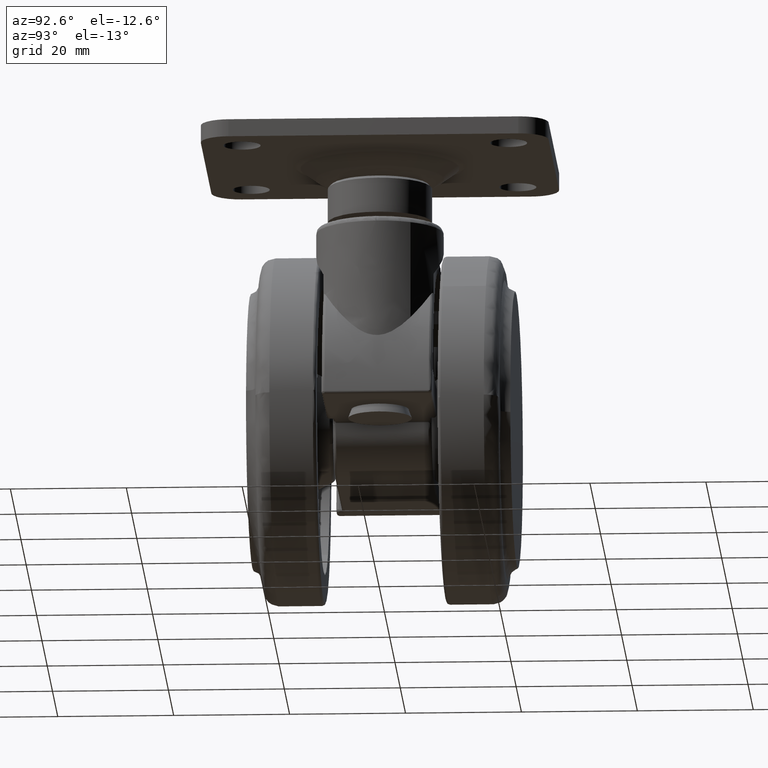
[diagram: clean part render]
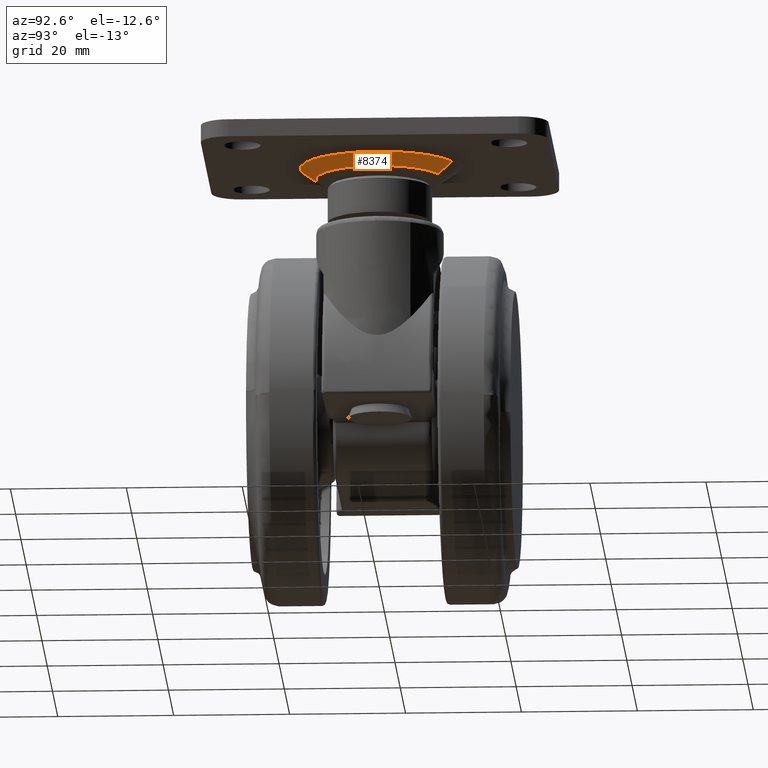
[diagram: same view with one face highlighted and labeled with its STEP entity id]
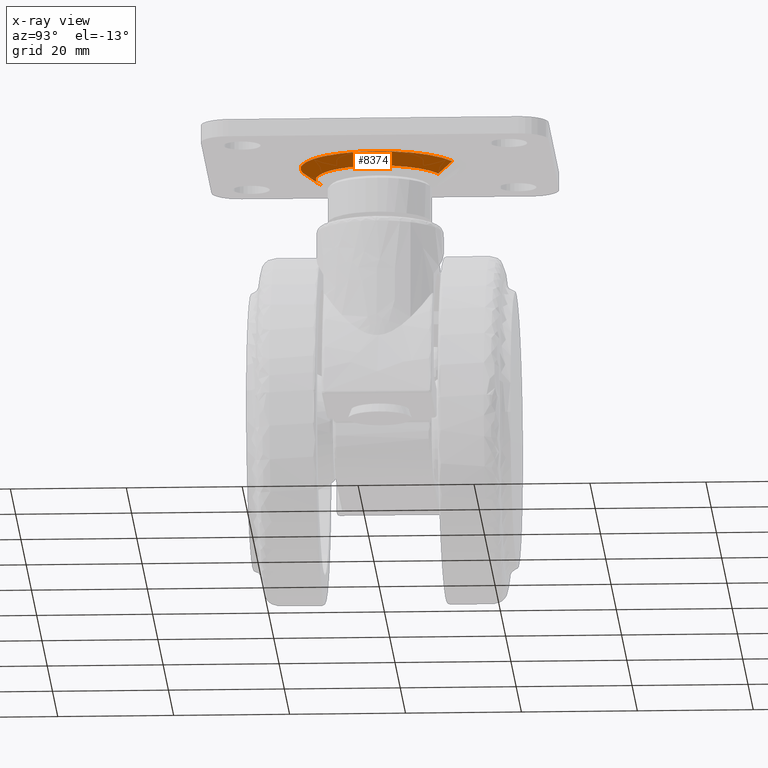
[diagram: x-ray of the same camera — body ghosted, the highlighted face saturated]
A machine part, auxiliary view. The second image highlights one B-rep face of the part: STEP entity #8374.
The next image is the same camera in x-ray: the body ghosted, the highlighted face saturated — about 0% of this face is hidden behind the body in this view.
In plain terms, the highlighted face is a freeform B-spline surface patch.
Its self-contained STEP definition (entity closure, byte-faithful):
#7995=CARTESIAN_POINT('',(23.629213184230942,-8.887295765471581,40.669664975674742));
#7996=VERTEX_POINT('',#7995);
#8006=CARTESIAN_POINT('',(12.757034767847570,-10.243424208140530,40.669664975787128));
#8007=VERTEX_POINT('',#8006);
#8008=CARTESIAN_POINT('',(23.629213184230942,-8.887295765471581,40.669664975674742));
#8009=CARTESIAN_POINT('',(22.935587136030222,-9.404908146098579,40.669664975680440));
#8010=CARTESIAN_POINT('',(21.764588128885340,-10.080942896384579,40.669664975690473));
#8011=CARTESIAN_POINT('',(19.877017381307319,-10.753123842034940,40.669664975708862));
#8012=CARTESIAN_POINT('',(18.199560697457290,-11.073482568834580,40.669664975725063));
#8013=CARTESIAN_POINT('',(16.583719268147771,-11.110845609218529,40.669664975743757));
#8014=CARTESIAN_POINT('',(14.771001035154560,-10.917934685164640,40.669664975762373));
#8015=CARTESIAN_POINT('',(13.556547616997291,-10.574824663955850,40.669664975778339));
#8016=CARTESIAN_POINT('',(12.757034767847570,-10.243424208140530,40.669664975787128));
#8017=B_SPLINE_CURVE_WITH_KNOTS('',3,(#8008,#8009,#8010,#8011,#8012,#8013,#8014,#8015,#8016),.UNSPECIFIED.,.F.,.U.,(4,1,1,1,1,1,4),(0.000000026957464,2.596357210552304,4.028842680034583,5.998475803822137,7.699540759522856,8.863435553193897,11.459792736788311),.UNSPECIFIED.);
#8018=EDGE_CURVE('',#7996,#8007,#8017,.T.);
#8093=CARTESIAN_POINT('',(21.242965232152439,10.243424208140540,40.669664975787143));
#8094=VERTEX_POINT('',#8093);
#8108=CARTESIAN_POINT('',(28.087402467265299,0.0,40.669664975879812));
#8109=VERTEX_POINT('',#8108);
#8110=CARTESIAN_POINT('',(21.242965232152439,10.243424208140540,40.669664975787143));
#8111=CARTESIAN_POINT('',(22.028719422162649,9.918168076289629,40.669664975795357));
#8112=CARTESIAN_POINT('',(23.195464073766711,9.268588736918002,40.669664975808082));
#8113=CARTESIAN_POINT('',(24.855544521568682,7.906321579589831,40.669664975827153));
#8114=CARTESIAN_POINT('',(26.147466703830929,6.399342668122078,40.669664975843688));
#8115=CARTESIAN_POINT('',(27.108026636122709,4.666465807433431,40.669664975857103));
#8116=CARTESIAN_POINT('',(27.645271929335522,3.193405835908266,40.669664975866972));
#8117=CARTESIAN_POINT('',(27.994918567622690,1.700763515272576,40.669664975873673));
#8118=CARTESIAN_POINT('',(28.087467074725669,0.646301863800232,40.669664975878149));
#8119=CARTESIAN_POINT('',(28.087402467265299,0.0,40.669664975879812));
#8120=B_SPLINE_CURVE_WITH_KNOTS('',3,(#8110,#8111,#8112,#8113,#8114,#8115,#8116,#8117,#8118,#8119),.UNSPECIFIED.,.F.,.U.,(4,1,1,1,1,1,1,4),(0.000000031191652,2.551187360688617,3.979854888524125,6.429010883205152,8.469938188094808,9.898611691827542,11.123188434778390,13.062084404852390),.UNSPECIFIED.);
#8121=EDGE_CURVE('',#8094,#8109,#8120,.T.);
#8123=CARTESIAN_POINT('',(28.087402467265299,0.0,40.669664975879812));
#8124=CARTESIAN_POINT('',(28.087585079012499,-0.859210478848283,40.669664975864023));
#8125=CARTESIAN_POINT('',(27.930547178648961,-2.201610457807433,40.669664975837662));
#8126=CARTESIAN_POINT('',(27.417178736961350,-3.873539088131663,40.669664975802348));
#8127=CARTESIAN_POINT('',(26.773610504258329,-5.323632281568425,40.669664975769400));
#8128=CARTESIAN_POINT('',(25.644426008831879,-7.098523879349719,40.669664975726413));
#8129=CARTESIAN_POINT('',(24.425741465908501,-8.293553720158263,40.669664975693337));
#8130=CARTESIAN_POINT('',(23.629213184230942,-8.887295765471581,40.669664975674742));
#8131=B_SPLINE_CURVE_WITH_KNOTS('',3,(#8123,#8124,#8125,#8126,#8127,#8128,#8129,#8130),.UNSPECIFIED.,.F.,.U.,(4,1,1,1,1,4),(0.000000021107700,2.577581655252228,4.027474828318551,5.235693656269389,7.329993917463666,10.310324906131850),.UNSPECIFIED.);
#8132=EDGE_CURVE('',#8109,#7996,#8131,.T.);
#8296=CARTESIAN_POINT('',(12.782229338027930,-10.182599135112319,40.621153808194620));
#8297=CARTESIAN_POINT('',(22.964828473140251,-14.400369797084389,40.621153808194620));
#8298=CARTESIAN_POINT('',(27.182599135112319,-4.217770661972070,40.621153808194620));
#8299=CARTESIAN_POINT('',(31.400369797084391,5.964828473140249,40.621153808194620));
#8300=CARTESIAN_POINT('',(21.217770661972072,10.182599135112319,40.621153808194620));
#8301=CARTESIAN_POINT('',(11.723427529253330,-12.738772821721140,42.659835621546797));
#8302=CARTESIAN_POINT('',(24.462200350974456,-18.015345292467817,42.659835621546812));
#8303=CARTESIAN_POINT('',(29.738772821721138,-5.276572470746674,42.659835621546797));
#8304=CARTESIAN_POINT('',(35.015345292467821,7.462200350974460,42.659835621546812));
#8305=CARTESIAN_POINT('',(22.276572470746679,12.738772821721140,42.659835621546797));
#8313=(BOUNDED_SURFACE()B_SPLINE_SURFACE(2,1,((#8296,#8301),(#8297,#8302),(#8298,#8303),(#8299,#8304),(#8300,#8305)),.UNSPECIFIED.,.F.,.F.,.U.)B_SPLINE_SURFACE_WITH_KNOTS((3,2,3),(2,2),(0.0,22.845283546455072,45.690567092910143),(0.0,3.436758461467527),.UNSPECIFIED.)GEOMETRIC_REPRESENTATION_ITEM()RATIONAL_B_SPLINE_SURFACE(((1.0,1.0),(0.707106781186548,0.707106781186548),(1.0,1.0),(0.707106781186548,0.707106781186548),(1.0,1.0)))REPRESENTATION_ITEM('')SURFACE());
#8314=ORIENTED_EDGE('',*,*,#8018,.F.);
#8315=ORIENTED_EDGE('',*,*,#8132,.F.);
#8316=ORIENTED_EDGE('',*,*,#8121,.F.);
#8317=CARTESIAN_POINT('',(22.250748036324911,12.676427121899300,42.610111674784903));
#8318=VERTEX_POINT('',#8317);
#8319=CARTESIAN_POINT('',(21.242965232152439,10.243424208140540,40.669664975787143));
#8320=CARTESIAN_POINT('',(22.250748036324911,12.676427121899300,42.610111674784903));
#8321=QUASI_UNIFORM_CURVE('',1,(#8319,#8320),.UNSPECIFIED.,.F.,.U.);
#8322=EDGE_CURVE('',#8094,#8318,#8321,.T.);
#8323=ORIENTED_EDGE('',*,*,#8322,.T.);
#8324=CARTESIAN_POINT('',(30.720865844244759,0.0,42.610111674706751));
#8325=VERTEX_POINT('',#8324);
#8326=CARTESIAN_POINT('',(22.250748036324911,12.676427121899300,42.610111674784903));
#8327=CARTESIAN_POINT('',(23.067494059698411,12.338222737892099,42.610111674779141));
#8328=CARTESIAN_POINT('',(24.597908464611070,11.523059801523400,42.610111674767580));
#8329=CARTESIAN_POINT('',(26.408703897757231,10.064678573751101,42.610111674754492));
#8330=CARTESIAN_POINT('',(27.768370874760240,8.564358545238811,42.610111674741013));
#8331=CARTESIAN_POINT('',(28.996466313400841,6.798003382922003,42.610111674731677));
#8332=CARTESIAN_POINT('',(29.964242929757781,4.727108430445750,42.610111674720692));
#8333=CARTESIAN_POINT('',(30.587970146550500,2.315204243266477,42.610111674711973));
#8334=CARTESIAN_POINT('',(30.720938377565091,0.799811220565590,42.610111674708442));
#8335=CARTESIAN_POINT('',(30.720865844244759,0.0,42.610111674706751));
#8336=B_SPLINE_CURVE_WITH_KNOTS('',3,(#8326,#8327,#8328,#8329,#8330,#8331,#8332,#8333,#8334,#8335),.UNSPECIFIED.,.F.,.U.,(4,1,1,1,1,1,1,4),(0.000000018775758,2.651992049773270,5.177721900669081,6.945721280759960,8.713691659692451,11.618285066894160,13.765143205343589,16.164571304677370),.UNSPECIFIED.);
#8337=EDGE_CURVE('',#8318,#8325,#8336,.T.);
#8338=ORIENTED_EDGE('',*,*,#8337,.T.);
#8339=CARTESIAN_POINT('',(25.203774060284331,-10.998193064772449,42.610111674879683));
#8340=VERTEX_POINT('',#8339);
#8341=CARTESIAN_POINT('',(30.720865844244759,0.0,42.610111674706751));
#8342=CARTESIAN_POINT('',(30.720911837542669,-0.730995329278649,42.610111674715981));
#8343=CARTESIAN_POINT('',(30.603763810886541,-2.192974128331152,42.610111674734988));
#8344=CARTESIAN_POINT('',(30.120970103535800,-4.168156585044953,42.610111674762962));
#8345=CARTESIAN_POINT('',(29.476547824682061,-5.774848958748933,42.610111674786900));
#8346=CARTESIAN_POINT('',(28.708894043638740,-7.212692158143789,42.610111674810319));
#8347=CARTESIAN_POINT('',(27.436851795924621,-9.046184365664283,42.610111674840617));
#8348=CARTESIAN_POINT('',(26.136164008029851,-10.303085008688541,42.610111674865422));
#8349=CARTESIAN_POINT('',(25.203774060284331,-10.998193064772449,42.610111674879683));
#8350=B_SPLINE_CURVE_WITH_KNOTS('',3,(#8341,#8342,#8343,#8344,#8345,#8346,#8347,#8348,#8349),.UNSPECIFIED.,.F.,.U.,(4,1,1,1,1,1,4),(0.000000019785068,2.192983874933667,4.385983910679842,6.080573153957592,7.376419213180572,9.270367431881160,12.759217974535060),.UNSPECIFIED.);
#8351=EDGE_CURVE('',#8325,#8340,#8350,.T.);
#8352=ORIENTED_EDGE('',*,*,#8351,.T.);
#8353=CARTESIAN_POINT('',(11.749251963675080,-12.676427121899300,42.610111674784903));
#8354=VERTEX_POINT('',#8353);
#8355=CARTESIAN_POINT('',(25.203774060284331,-10.998193064772449,42.610111674879683));
#8356=CARTESIAN_POINT('',(24.286239910702019,-11.683003881089411,42.610111674874531));
#8357=CARTESIAN_POINT('',(22.958475468446512,-12.435181641223799,42.610111674866609));
#8358=CARTESIAN_POINT('',(20.771183364501780,-13.234033379057919,42.610111674852462));
#8359=CARTESIAN_POINT('',(18.890069909693629,-13.656689095654640,42.610111674839700));
#8360=CARTESIAN_POINT('',(16.669877511930519,-13.770896558733989,42.610111674823543));
#8361=CARTESIAN_POINT('',(14.275496448384050,-13.525813848708570,42.610111674805481));
#8362=CARTESIAN_POINT('',(12.670440637796320,-13.058200593695480,42.610111674792464));
#8363=CARTESIAN_POINT('',(11.749251963675080,-12.676427121899300,42.610111674784903));
#8364=B_SPLINE_CURVE_WITH_KNOTS('',3,(#8355,#8356,#8357,#8358,#8359,#8360,#8361,#8362,#8363),.UNSPECIFIED.,.F.,.U.,(4,1,1,1,1,1,4),(0.000000022293127,3.434631497026071,4.542577988564883,6.980073395412998,9.195945880785292,11.190253604919910,14.181705698156620),.UNSPECIFIED.);
#8365=EDGE_CURVE('',#8340,#8354,#8364,.T.);
#8366=ORIENTED_EDGE('',*,*,#8365,.T.);
#8367=CARTESIAN_POINT('',(12.757034767847570,-10.243424208140530,40.669664975787128));
#8368=CARTESIAN_POINT('',(11.749251963675080,-12.676427121899300,42.610111674784903));
#8369=QUASI_UNIFORM_CURVE('',1,(#8367,#8368),.UNSPECIFIED.,.F.,.U.);
#8370=EDGE_CURVE('',#8007,#8354,#8369,.T.);
#8371=ORIENTED_EDGE('',*,*,#8370,.F.);
#8372=EDGE_LOOP('',(#8314,#8315,#8316,#8323,#8338,#8352,#8366,#8371));
#8373=FACE_OUTER_BOUND('',#8372,.T.);
#8374=ADVANCED_FACE('',(#8373),#8313,.T.);